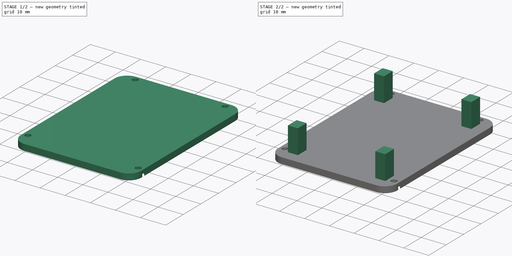
[diagram: build sequence overview — one tinted view per stage of 2, left to right]
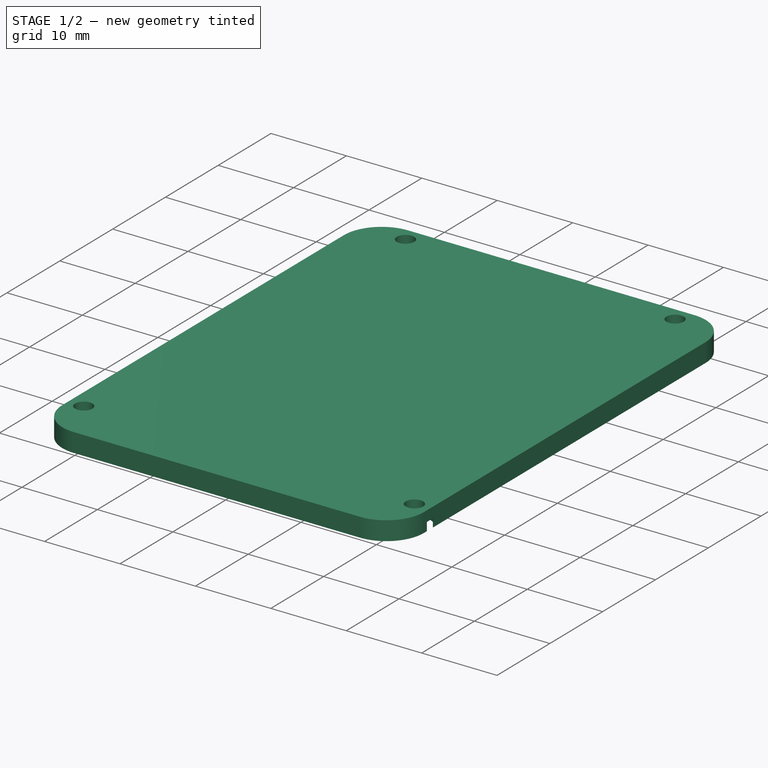
[diagram: stage 1 of 2 — iso view after this stage's code; geometry added in this stage tinted green]
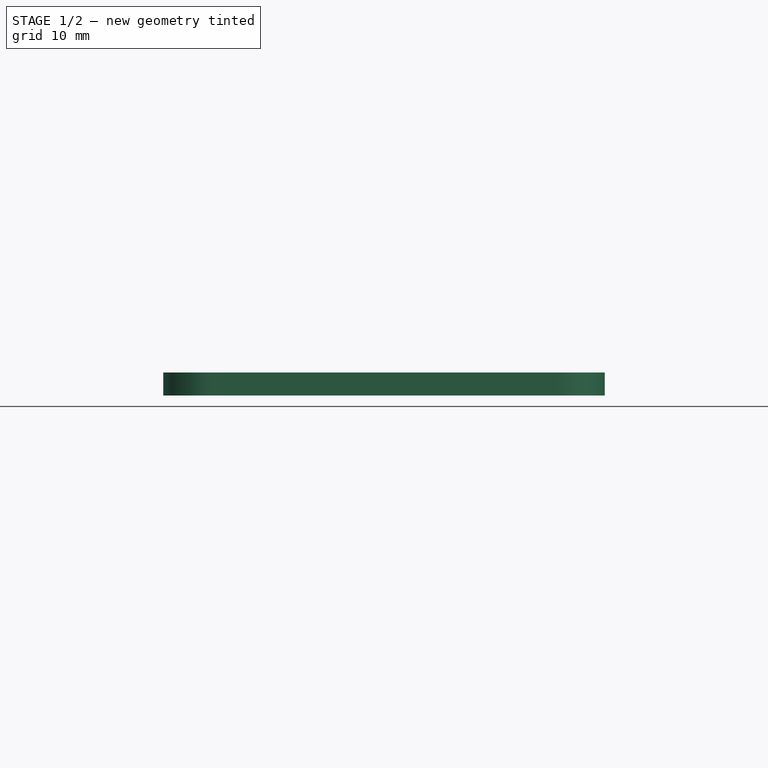
[diagram: stage 1 of 2 — front view after this stage's code; geometry added in this stage tinted green]
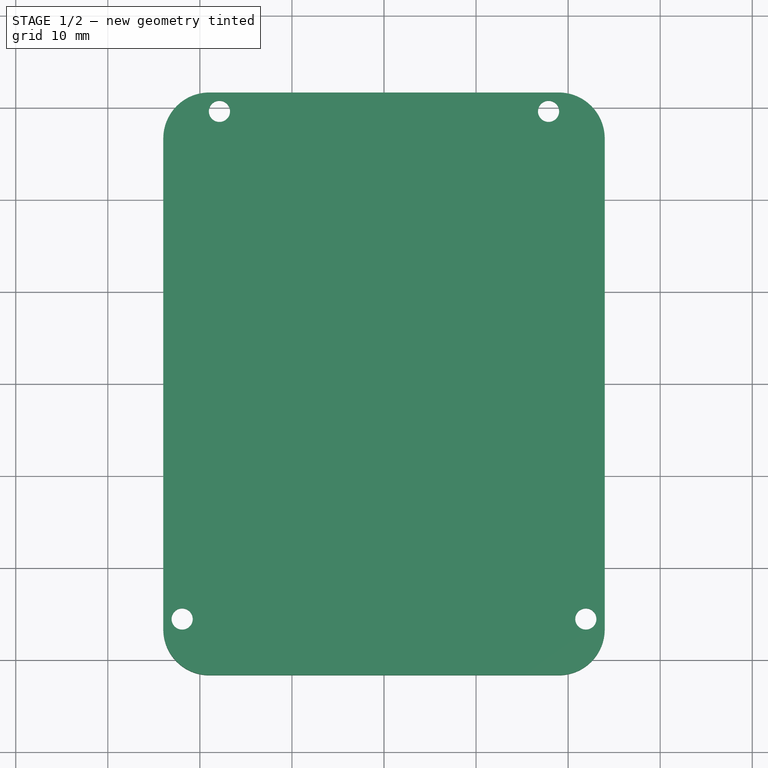
[diagram: stage 1 of 2 — top view after this stage's code; geometry added in this stage tinted green]
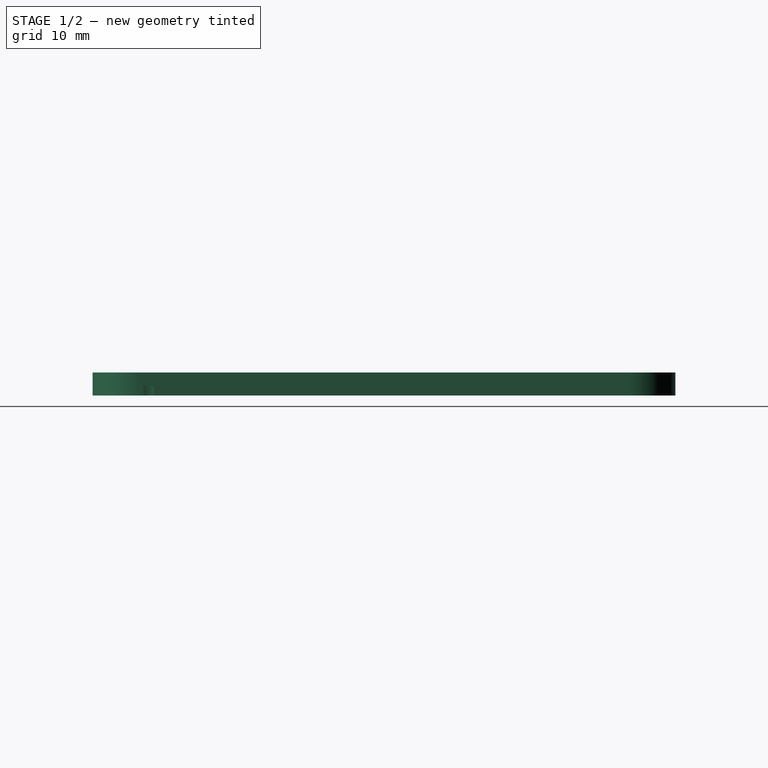
[diagram: stage 1 of 2 — right view after this stage's code; geometry added in this stage tinted green]
FCSTD DOCUMENT  (FreeCAD 0.20R29410 (Git))
Label: cover
License: All rights reserved
LicenseURL: http://en.wikipedia.org/wiki/All_rights_reserved
objects: Sketcher::SketchObject×3, PartDesign::Pad×2, PartDesign::Pocket×1, PartDesign::Body×1, App::Link×1
note: 10 computed .brp shape members not serialized (recipe doc carries the construction recipe); baked Part::Feature solids carry a one-line shape summary decoded from their .brp

FEATURE [Sketcher::SketchObject] Sketch009
  FullyConstrained = false
  MapMode = 5
  Placement = pos=(0,0,12.1) rot=(0,0,1;0rad)
  sketch-geometry (12):
    g0: LineSegment StartX=-18.975 StartY=31.65 StartZ=0 EndX=18.975 EndY=31.65 EndZ=0
    g1: LineSegment StartX=23.975 StartY=26.65 StartZ=0 EndX=23.975 EndY=-26.65 EndZ=0
    g2: LineSegment StartX=18.975 StartY=-31.65 StartZ=0 EndX=-18.975 EndY=-31.65 EndZ=0
    g3: LineSegment StartX=-23.975 StartY=-26.65 StartZ=0 EndX=-23.975 EndY=26.65 EndZ=0
    g4: ArcOfCircle CenterX=-18.975 CenterY=26.65 CenterZ=0 NormalX=0 NormalY=0 NormalZ=1 AngleXU=0 Radius=5 StartAngle=1.5708 EndAngle=3.14159
    g5: ArcOfCircle CenterX=18.975 CenterY=26.65 CenterZ=0 NormalX=0 NormalY=0 NormalZ=1 AngleXU=0 Radius=5 StartAngle=0 EndAngle=1.5708
    g6: ArcOfCircle CenterX=-18.975 CenterY=-26.65 CenterZ=0 NormalX=0 NormalY=0 NormalZ=1 AngleXU=0 Radius=5 StartAngle=3.14159 EndAngle=4.71239
    g7: ArcOfCircle CenterX=18.975 CenterY=-26.65 CenterZ=0 NormalX=0 NormalY=0 NormalZ=1 AngleXU=0 Radius=5 StartAngle=4.71239 EndAngle=6.28319
    g8: Circle CenterX=17.875 CenterY=29.6 CenterZ=0 NormalX=0 NormalY=0 NormalZ=1 AngleXU=0 Radius=1.15
    g9: Circle CenterX=-17.875 CenterY=29.6 CenterZ=0 NormalX=0 NormalY=0 NormalZ=1 AngleXU=0 Radius=1.15
    g10: Circle CenterX=21.925 CenterY=-25.55 CenterZ=0 NormalX=0 NormalY=0 NormalZ=1 AngleXU=0 Radius=1.15
    g11: Circle CenterX=-21.925 CenterY=-25.55 CenterZ=0 NormalX=0 NormalY=0 NormalZ=1 AngleXU=0 Radius=1.15
  constraints (12):
    c: Coincident(g4,g3)
    c: Coincident(g4,g0)
    c: Coincident(g5,g0)
    c: Coincident(g5,g1)
    c: Coincident(g6,g3)
    c: Coincident(g6,g2)
    c: Coincident(g7,g2)
    c: Coincident(g1,g7)
    c: Diameter(g8) = 2.3
    c: Diameter(g9) = 2.3
    c: Diameter(g10) = 2.3
    c: Diameter(g11) = 2.3
FEATURE [PartDesign::Pad] Pad
  Direction = (0,0,1)
  Length = 2.5
  Length2 = 10
  Placement = pos=(0,0,12.1) rot=(0,0,1;0rad)
  Profile = -> Sketch009
  ReferenceAxis = -> Sketch009 [N_Axis]
  Type = 0
FEATURE [Sketcher::SketchObject] Sketch
  ExternalGeometry = -> [Pad]
  FullyConstrained = true
  MapMode = 5
  Placement = pos=(0,0,12.1) rot=(1,0,0;3.14159rad)
  Support = -> [Pad]
  sketch-geometry (4):
    g0: Circle CenterX=21.925 CenterY=25.55 CenterZ=0 NormalX=0 NormalY=0 NormalZ=1 AngleXU=0 Radius=2.125
    g1: Circle CenterX=-21.925 CenterY=25.55 CenterZ=0 NormalX=0 NormalY=0 NormalZ=1 AngleXU=0 Radius=2.125
    g2: Circle CenterX=17.875 CenterY=-29.6 CenterZ=0 NormalX=0 NormalY=0 NormalZ=1 AngleXU=0 Radius=2.125
    g3: Circle CenterX=-17.875 CenterY=-29.6 CenterZ=0 NormalX=0 NormalY=0 NormalZ=1 AngleXU=0 Radius=2.125
  constraints (8):
    c: Coincident(g0,g-3)
    c: Diameter(g0) = 4.25
    c: Diameter(g1) = 4.25
    c: Coincident(g1,g-4)
    c: Coincident(g2,g-5)
    c: Diameter(g2) = 4.25
    c: Diameter(g3) = 4.25
    c: Coincident(g3,g-6)
FEATURE [PartDesign::Pocket] Pocket
  BaseFeature = -> Pad
  Direction = (0,0,1)
  Length = 1.1
  Length2 = 5
  Placement = pos=(0,0,12.1) rot=(0,0,1;0rad)
  Profile = -> Sketch
  ReferenceAxis = -> Sketch [N_Axis]
  Type = 0
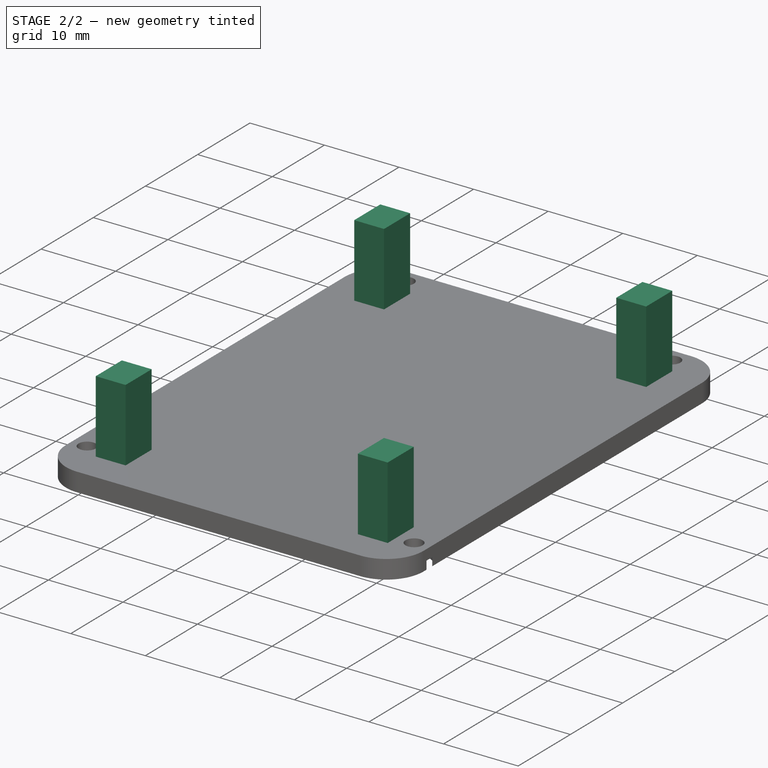
[diagram: stage 2 of 2 — iso view after this stage's code; geometry added in this stage tinted green]
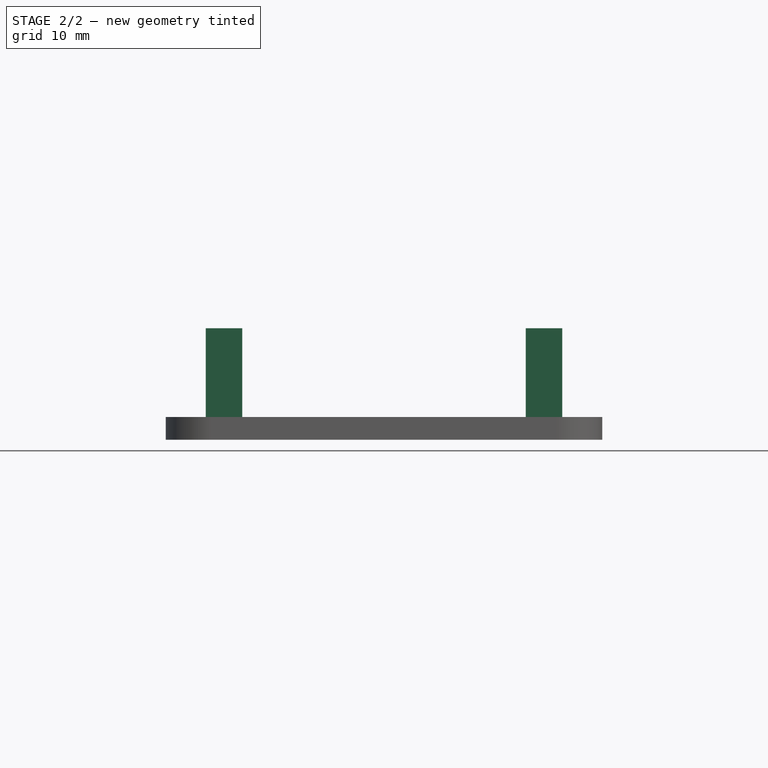
[diagram: stage 2 of 2 — front view after this stage's code; geometry added in this stage tinted green]
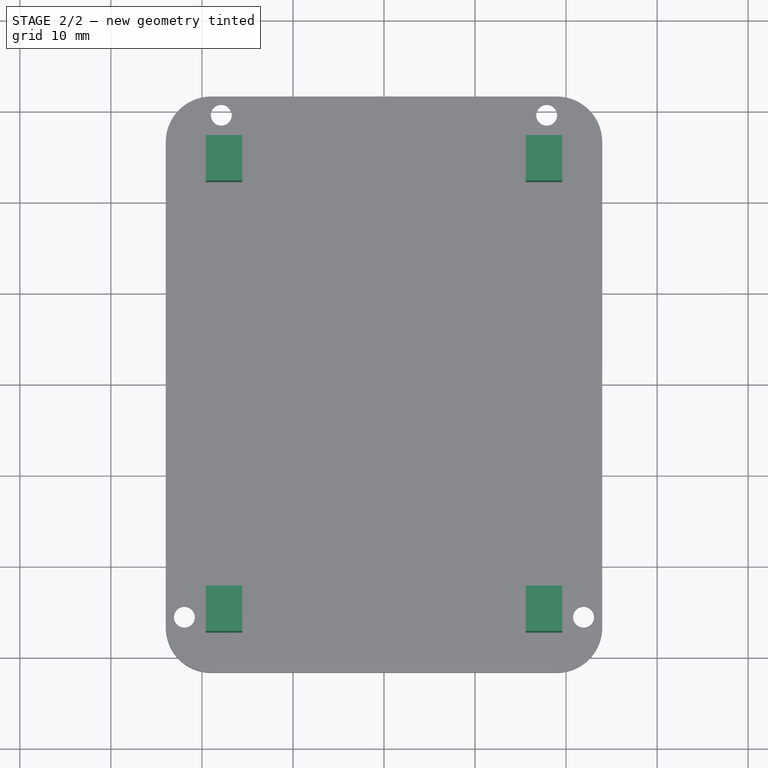
[diagram: stage 2 of 2 — top view after this stage's code; geometry added in this stage tinted green]
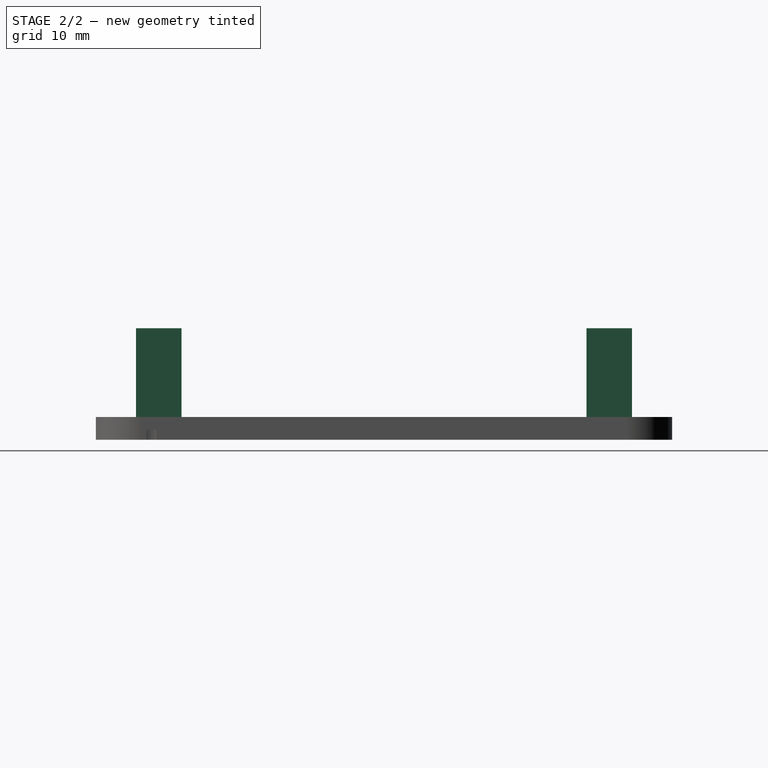
[diagram: stage 2 of 2 — right view after this stage's code; geometry added in this stage tinted green]
FEATURE [Sketcher::SketchObject] Sketch010
  ExternalGeometry = -> [Pocket]
  FullyConstrained = true
  MapMode = 5
  Placement = pos=(0,0,14.6) rot=(0,0,1;0rad)
  Support = -> [Pocket]
  sketch-geometry (16):
    g0: LineSegment StartX=15.575 StartY=27.25 StartZ=0 EndX=19.575 EndY=27.25 EndZ=0
    g1: LineSegment StartX=19.575 StartY=27.25 StartZ=0 EndX=19.575 EndY=22.25 EndZ=0
    g2: LineSegment StartX=19.575 StartY=22.25 StartZ=0 EndX=15.575 EndY=22.25 EndZ=0
    g3: LineSegment StartX=15.575 StartY=22.25 StartZ=0 EndX=15.575 EndY=27.25 EndZ=0
    g4: LineSegment StartX=-15.575 StartY=27.25 StartZ=0 EndX=-19.575 EndY=27.25 EndZ=0
    g5: LineSegment StartX=-19.575 StartY=27.25 StartZ=0 EndX=-19.575 EndY=22.25 EndZ=0
    g6: LineSegment StartX=-19.575 StartY=22.25 StartZ=0 EndX=-15.575 EndY=22.25 EndZ=0
    g7: LineSegment StartX=-15.575 StartY=22.25 StartZ=0 EndX=-15.575 EndY=27.25 EndZ=0
    g8: LineSegment StartX=15.575 StartY=-27.25 StartZ=0 EndX=19.575 EndY=-27.25 EndZ=0
    g9: LineSegment StartX=19.575 StartY=-27.25 StartZ=0 EndX=19.575 EndY=-22.25 EndZ=0
    g10: LineSegment StartX=19.575 StartY=-22.25 StartZ=0 EndX=15.575 EndY=-22.25 EndZ=0
    g11: LineSegment StartX=15.575 StartY=-22.25 StartZ=0 EndX=15.575 EndY=-27.25 EndZ=0
    g12: LineSegment StartX=-15.575 StartY=-27.25 StartZ=0 EndX=-19.575 EndY=-27.25 EndZ=0
    g13: LineSegment StartX=-19.575 StartY=-27.25 StartZ=0 EndX=-19.575 EndY=-22.25 EndZ=0
    g14: LineSegment StartX=-19.575 StartY=-22.25 StartZ=0 EndX=-15.575 EndY=-22.25 EndZ=0
    g15: LineSegment StartX=-15.575 StartY=-22.25 StartZ=0 EndX=-15.575 EndY=-27.25 EndZ=0
  constraints (48):
    c: Coincident(g0,g1)
    c: Coincident(g1,g2)
    c: Coincident(g2,g3)
    c: Coincident(g3,g0)
    c: Horizontal(g0)
    c: Horizontal(g2)
    c: Vertical(g1)
    c: Vertical(g3)
    c: DistanceY(g1,g1) = 5
    c: DistanceX(g0,g0) = 4
    c: DistanceX(g0,g-4) = 4.4
    c: DistanceY(g0,g-3) = 4.4
    c: Coincident(g4,g5)
    c: Coincident(g5,g6)
    c: Coincident(g6,g7)
    c: Coincident(g7,g4)
    c: Horizontal(g4)
    c: Horizontal(g6)
    c: Vertical(g5)
    c: Vertical(g7)
    c: DistanceY(g4,g-3) = 4.4
    c: DistanceX(g-5,g4) = 4.4
    c: Equal(g7,g3)
    c: Equal(g4,g2)
    c: Coincident(g8,g9)
    c: Coincident(g9,g10)
    c: Coincident(g10,g11)
    c: Coincident(g11,g8)
    c: Horizontal(g8)
    c: Horizontal(g10)
    c: Vertical(g9)
    c: Vertical(g11)
    c: Coincident(g12,g13)
    c: Coincident(g13,g14)
    c: Coincident(g14,g15)
    c: Coincident(g15,g12)
    c: Horizontal(g12)
    c: Horizontal(g14)
    c: Vertical(g13)
    c: Vertical(g15)
    c: Equal(g15,g11)
    c: Equal(g12,g10)
    c: DistanceX(g8,g-4) = 4.4
    c: DistanceY(g-6,g8) = 4.4
    c: Equal(g2,g10)
    c: Equal(g11,g3)
    c: DistanceX(g-5,g12) = 4.4
    c: DistanceY(g-6,g12) = 4.4
FEATURE [PartDesign::Pad] Pad001
  BaseFeature = -> Pocket
  Direction = (0,0,1)
  Length = 9.75
  Length2 = 10
  Placement = pos=(0,0,12.1) rot=(0,0,1;0rad)
  Profile = -> Sketch010
  ReferenceAxis = -> Sketch010 [N_Axis]
  Type = 0
FEATURE [PartDesign::Body] Body  label="cover"
  Group = -> [Sketch009,Pad,Sketch,Pocket,Sketch010,Pad001]
  Origin = -> Origin
  Tip = -> Pad001
FEATURE [App::Link] Link  label="cover001"
  LinkedObject = -> Body
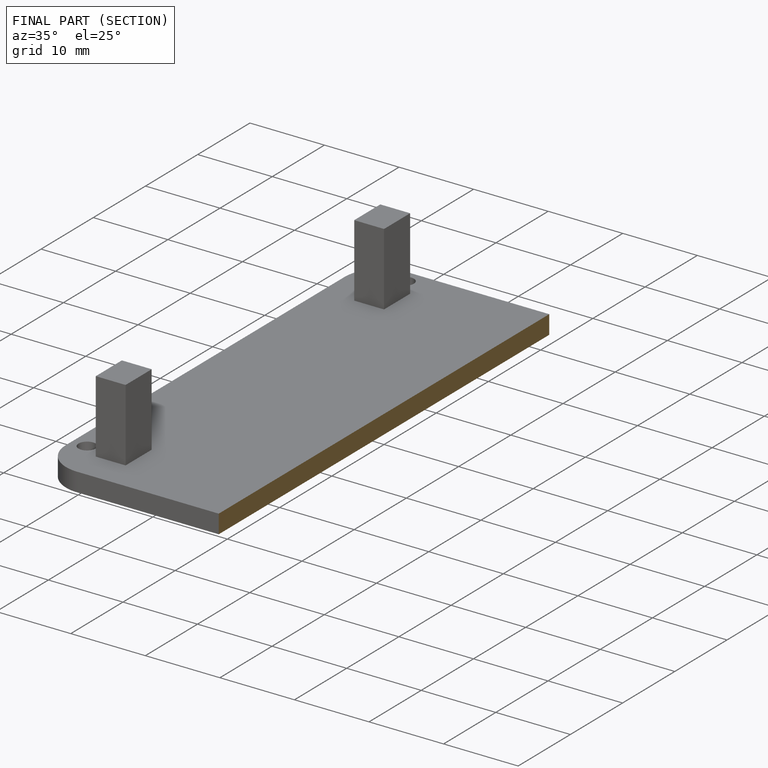
[diagram: finished part — half-section view (interior)]
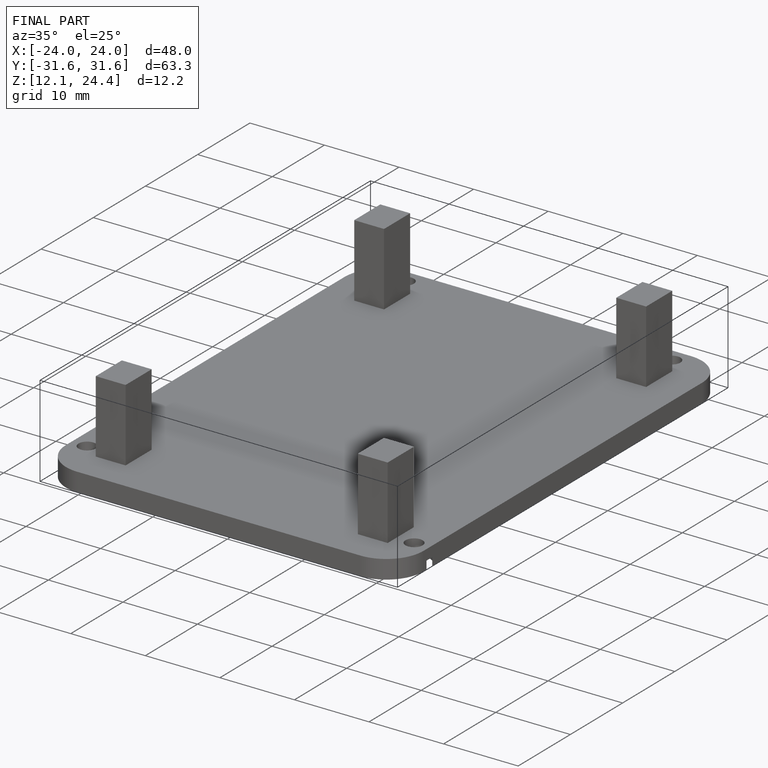
[diagram: finished part — iso view with bounding-box wireframe]
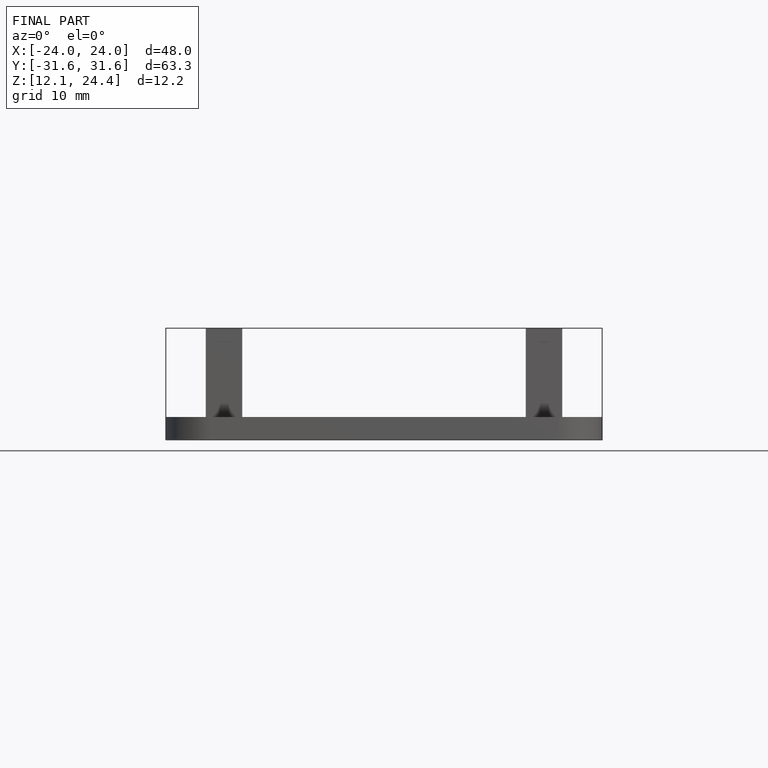
[diagram: finished part — front view with bounding-box wireframe]
